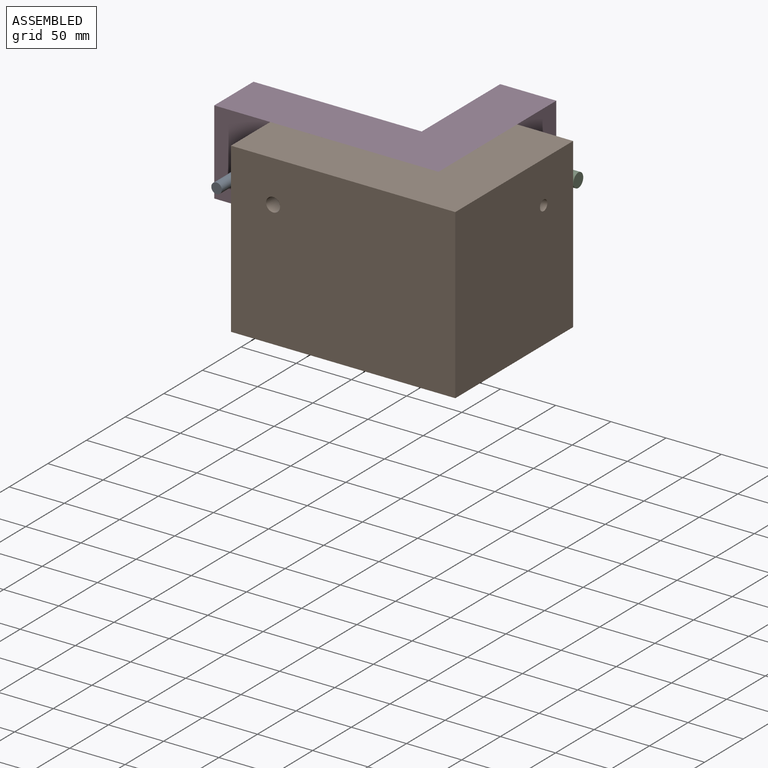
[diagram: assembled view]
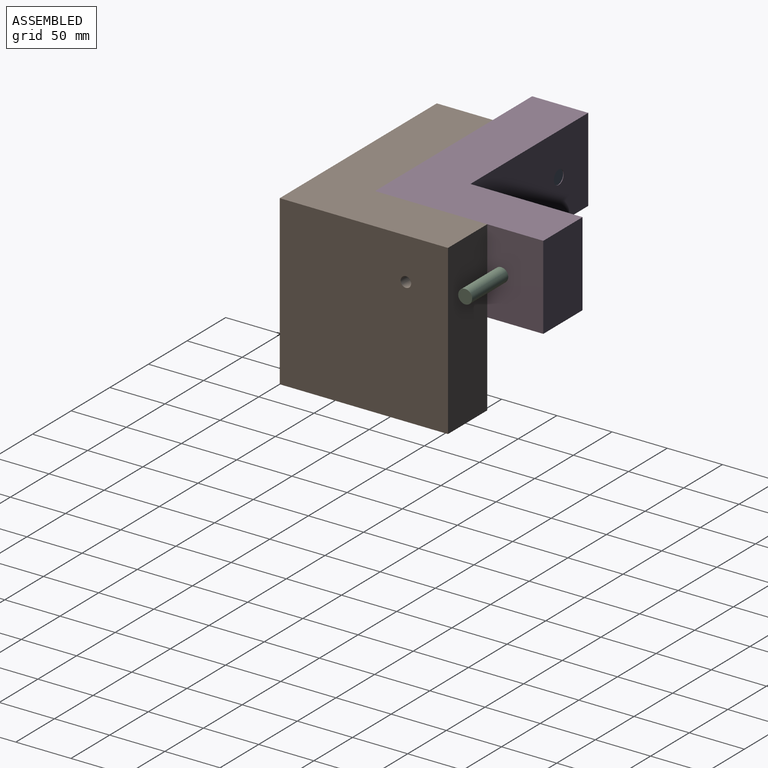
[diagram: assembled view, second angle]
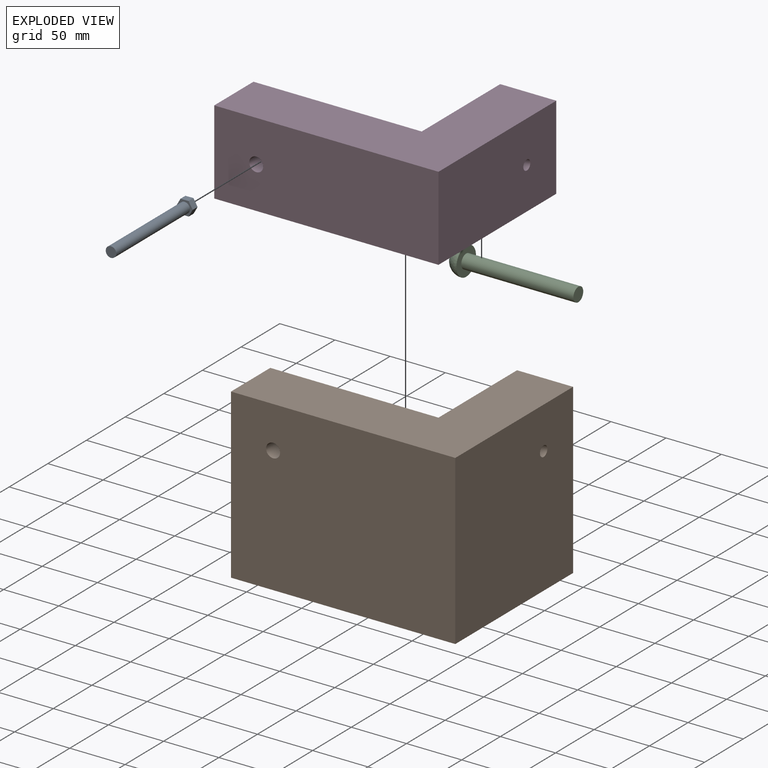
[diagram: exploded view]
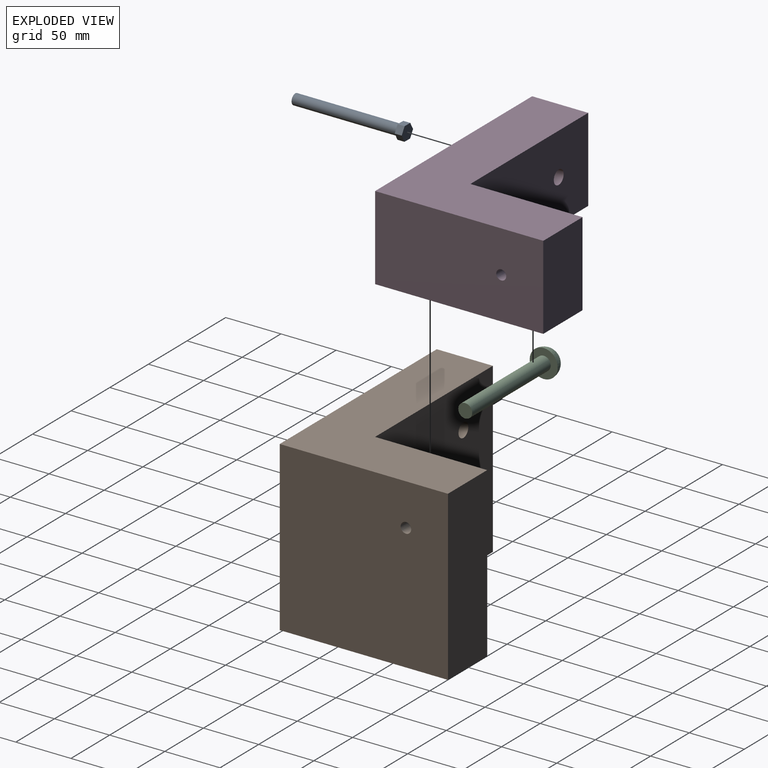
[diagram: exploded view, second angle]
ASSEMBLY  parts=4 mates=5
PART A: 10 faces, bbox 14.7x101.6x12.8 mm
  f0: cylinder r=4.76mm len=95.25mm, axis (0,1,0), area 2850.2mm2, adj f1,f8
  f1: plane 9.53x9.53mm, normal (0,-1,0), area 71.3mm2, adj f0
  f2: plane 7.33x6.35mm, normal (-0.01,0,1), area 46.6mm2, adj f3,f7,f8,f9
  f3: plane 6.39x6.35mm, normal (-0.87,0,0.49), area 46.6mm2, adj f2,f4,f8,f9
  f4: plane 6.35x6.31mm, normal (-0.86,0,-0.51), area 46.6mm2, adj f3,f5,f8,f9
  f5: plane 7.33x6.35mm, normal (0.01,0,-1), area 46.6mm2, adj f4,f6,f8,f9
  f6: plane 6.39x6.35mm, normal (0.87,0,-0.49), area 46.6mm2, adj f5,f7,f8,f9
  f7: plane 6.35x6.31mm, normal (0.86,0,0.51), area 46.6mm2, adj f2,f6,f8,f9
  f8: plane 14.66x12.79mm, normal (0,-1,0), area 68.4mm2, adj f0,f2,f3,f4,f5,f6,f7
  f9: plane 14.66x12.79mm, normal (0,1,0), area 139.7mm2, adj f2,f3,f4,f5,f6,f7
PART B: 12 faces, bbox 152.4x152.4x203.2 mm
  f0: plane 101.6x76.2mm, normal (0,-1,0), area 3871mm2, adj f1,f2,f9
  f1: plane 152.4x152.4mm, normal (1,0,0), area 17292.6mm2, adj f0,f2,f3,f7,f8,f9,f10
  f2: plane 101.6x76.2mm, normal (0,0,1), area 7670.7mm2, adj f0,f1,f6,f7,f11
  f3: plane 152.4x50.8mm, normal (0,0,1), area 7741.9mm2, adj f1,f4,f7,f8
  f4: plane 203.2x152.4mm, normal (-1,0,0), area 30841mm2, adj f3,f5,f7,f8,f10
  f5: plane 152.4x152.4mm, normal (0,0,-1), area 23154.5mm2, adj f4,f6,f7,f8,f11
  f6: plane 152.4x50.8mm, normal (1,0,0), area 7741.9mm2, adj f2,f5,f7,f8,f9
  f7: plane 203.2x152.4mm, normal (0,-1,0), area 15483.8mm2, adj f1,f2,f3,f4,f5,f6
  f8: plane 203.2x152.4mm, normal (0,1,0), area 19354.8mm2, adj f1,f3,f4,f5,f6,f9
  f9: plane 101.6x76.2mm, normal (0.6,0,0.8), area 9677.4mm2, adj f0,f1,f6,f8
  f10: cylinder r=6.35mm len=50.8mm, axis (1,0,0), area 2026.8mm2, adj f1,f4
  f11: cylinder r=4.76mm len=50.8mm, axis (0,0,1), area 1520.1mm2, adj f2,f5
PART C: 4 faces, bbox 25.4x114.3x25.4 mm
  f0: cylinder r=6.35mm len=101.6mm, axis (0,1,0), area 4053.7mm2, adj f1,f2
  f1: plane 12.7x12.7mm, normal (0,-1,0), area 126.7mm2, adj f0
  f2: plane 25.4x25.4mm, normal (0,-1,0), area 380mm2, adj f0,f3
  f3: sphere r=12.7mm, area 1013.4mm2, adj f2
PART D: 10 faces, bbox 152.4x76.2x203.2 mm
  f0: plane 203.2x152.4mm, normal (0,-1,0), area 15483.8mm2, adj f2,f3,f4,f5,f6,f7
  f1: plane 203.2x152.4mm, normal (0,1,0), area 15483.8mm2, adj f2,f3,f4,f5,f6,f7
  f2: plane 152.4x76.2mm, normal (0,0,-1), area 11549mm2, adj f0,f1,f5,f6,f8
  f3: plane 152.4x76.2mm, normal (1,0,0), area 11486.2mm2, adj f0,f1,f4,f7,f9
  f4: plane 76.2x50.8mm, normal (0,0,1), area 3871mm2, adj f0,f1,f3,f5
  f5: plane 203.2x76.2mm, normal (-1,0,0), area 15357.2mm2, adj f0,f1,f2,f4,f9
  f6: plane 76.2x50.8mm, normal (1,0,0), area 3871mm2, adj f0,f1,f2,f7
  f7: plane 101.6x76.2mm, normal (0,0,1), area 7678.1mm2, adj f0,f1,f3,f6,f8
  f8: cylinder r=4.51mm len=50.8mm, axis (0,0,1), area 1439mm2, adj f2,f7
  f9: cylinder r=6.35mm len=50.8mm, axis (1,0,0), area 2026.8mm2, adj f3,f5
PLACE A t=(320.23,5.44,-586.61)mm
PLACE B rot(axis=(-0.58,-0.58,0.58),120deg) t=(485.33,-44.83,-700.91)mm
PLACE C rot(axis=(0,0,1),90deg) t=(430.38,69.47,-586.61)mm
PLACE D rot(axis=(-0.58,-0.58,0.58),120deg) t=(456.38,-24.85,-624.71)mm
MATE planar B.f0 <-> D.f1  axis (0,0,1) through (459.93,-10.97,-624.71)mm
MATE planar B.f2 <-> D.f8  axis (-1,0,0) through (485.33,5.85,-586.61)mm
MATE planar B.f1 <-> D.f5  axis (0,1,0) through (396.62,-44.83,-612.19)mm
MATE cylindrical D.f9 <-> A.f0  axis (0,1,0) through (320.23,5.97,-586.61)mm
MATE cylindrical D.f8 <-> C.f0  axis (-1,0,0) through (434.53,69.47,-586.61)mm
